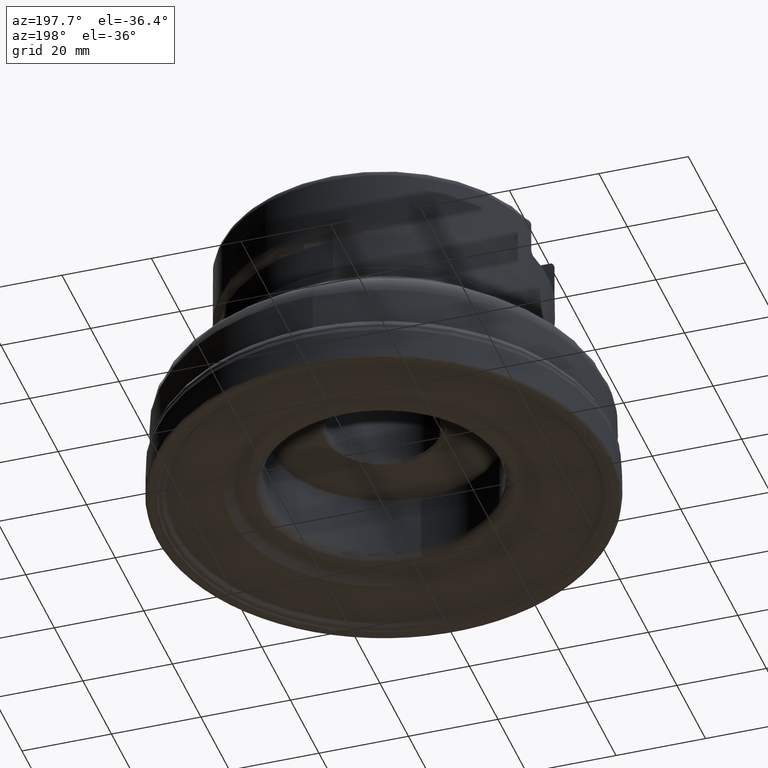
[diagram: clean part render]
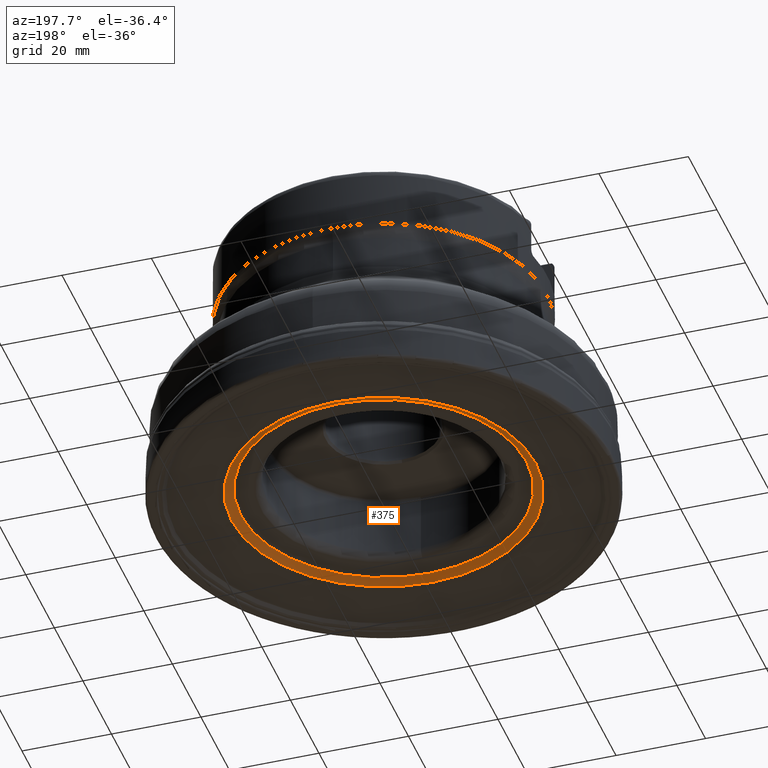
[diagram: same view with one face highlighted and labeled with its STEP entity id]
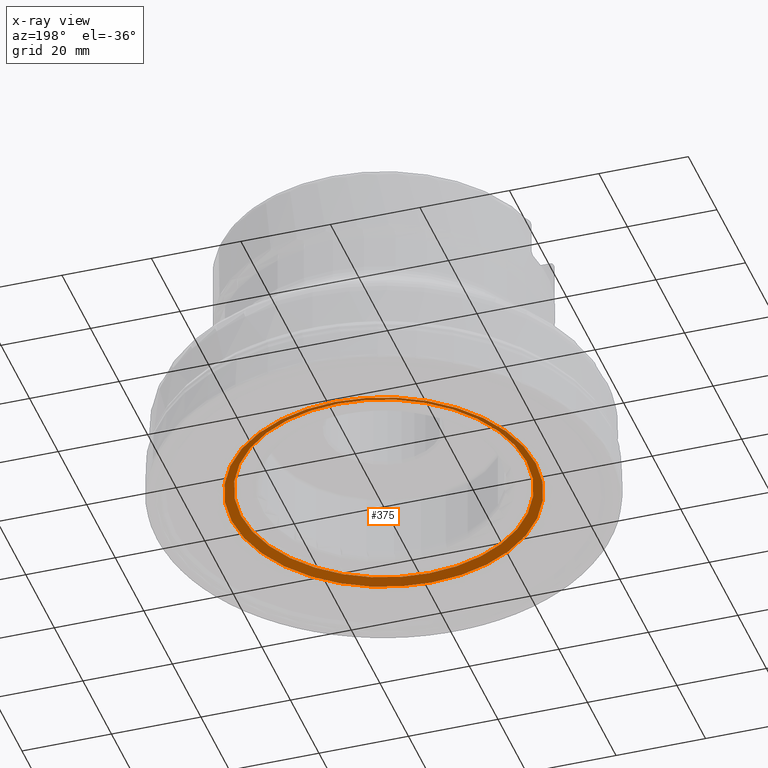
[diagram: x-ray of the same camera — body ghosted, the highlighted face saturated]
A machine part, auxiliary view. The second image highlights one B-rep face of the part: STEP entity #375.
The next image is the same camera in x-ray: the body ghosted, the highlighted face saturated — about 0% of this face is hidden behind the body in this view.
In plain terms, the highlighted conical surface has half-angle 65 deg.
Its self-contained STEP definition (entity closure, byte-faithful):
#180=FACE_BOUND('',#494,.T.);
#181=FACE_BOUND('',#495,.T.);
#280=CONICAL_SURFACE('',#1236,35.,65.);
#375=ADVANCED_FACE('',(#180,#181),#280,.F.);
#494=EDGE_LOOP('',(#734));
#495=EDGE_LOOP('',(#735));
#625=CIRCLE('',#1234,31.9300548465206);
#626=CIRCLE('',#1235,33.9953820045112);
#734=ORIENTED_EDGE('',*,*,#1059,.T.);
#735=ORIENTED_EDGE('',*,*,#1060,.T.);
#952=VERTEX_POINT('',#2093);
#953=VERTEX_POINT('',#2095);
#1059=EDGE_CURVE('',#952,#952,#625,.T.);
#1060=EDGE_CURVE('',#953,#953,#626,.T.);
#1234=AXIS2_PLACEMENT_3D('',#2092,#1410,#1411);
#1235=AXIS2_PLACEMENT_3D('',#2094,#1412,#1413);
#1236=AXIS2_PLACEMENT_3D('',#2096,#1414,#1415);
#1410=DIRECTION('',(0.,1.17145536458252E-15,1.));
#1411=DIRECTION('',(0.,1.,-1.16807048759472E-15));
#1412=DIRECTION('',(0.,-1.17145536458252E-15,-1.));
#1413=DIRECTION('',(0.,-1.,1.17364881918879E-15));
#1414=DIRECTION('',(0.,-1.17145536458252E-15,-1.));
#1415=DIRECTION('',(0.,1.,-1.17816759430813E-15));
#2092=CARTESIAN_POINT('',(0.,2.96558486626995E-15,2.53153893518325));
#2093=CARTESIAN_POINT('',(0.,31.9300548465206,2.53153893518321));
#2094=CARTESIAN_POINT('',(0.,1.83738212851841E-15,1.56846106481676));
#2095=CARTESIAN_POINT('',(0.,-33.9953820045112,1.5684610648168));
#2096=CARTESIAN_POINT('',(0.,1.28860090104078E-15,1.1));